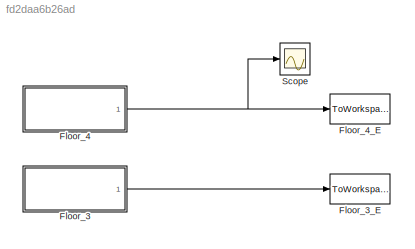
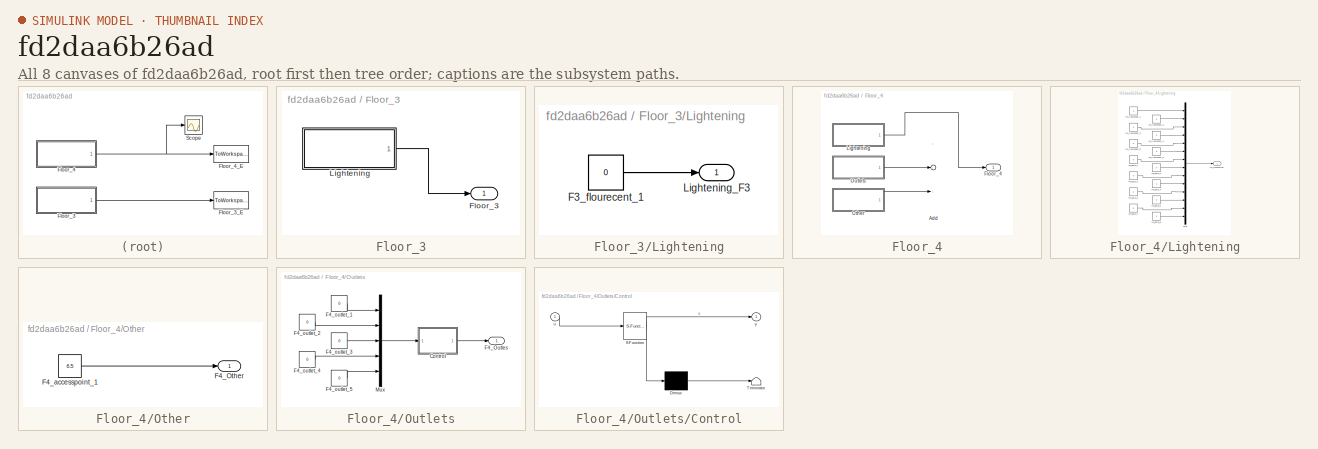
[diagram: thumbnail index - all 8 canvases of the model, root first then tree order]
MODEL slx_fd2daa6b26ad
KIND model
CONFIG AbsTol = auto
CONFIG EnableMultiTasking = off
CONFIG FixedStep = auto
CONFIG MaxStep = auto
CONFIG MinStep = auto
CONFIG RelTol = 1e-3
CONFIG SampleTimeConstraint = Unconstrained
CONFIG Solver = VariableStepAuto
CONFIG SolverName = VariableStepAuto
CONFIG StartTime = 0.0
CONFIG StopTime = inf
BLOCK [SubSystem] Floor_3
  Commented = on
  Ports = [0, 1]
  RequestExecContextInheritance = off
  Variant = off
BLOCK [Outport] Floor_3/Floor_3
  IconDisplay = Port number
BLOCK [SubSystem] Floor_3/Lightening
  Ports = [0, 1]
  RequestExecContextInheritance = off
  Variant = off
BLOCK [Constant] Floor_3/Lightening/F3_flourecent_1
  Value = 0
BLOCK [Outport] Floor_3/Lightening/Lightening_F3
  IconDisplay = Port number
BLOCK [ToWorkspace] Floor_3_E
  Commented = on
  FixptAsFi = on
  MaxDataPoints = inf
  Ports = [1]
  SampleTime = -1
  Save2DSignal = 3-D array (concatenate along third dimension)
  SaveFormat = Timeseries
  VariableName = F3_Energy
BLOCK [SubSystem] Floor_4
  Ports = [0, 1]
  RequestExecContextInheritance = off
  Variant = off
BLOCK [Sum] Floor_4/Add
  Commented = on
  InputSameDT = off
  Inputs = +++
  OutDataTypeStr = Inherit: Inherit via internal rule
  Ports = [3, 1]
  SaturateOnIntegerOverflow = off
BLOCK [Outport] Floor_4/Floor_4
  IconDisplay = Port number
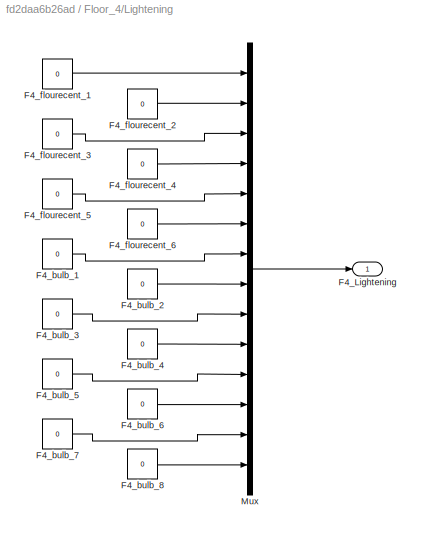
BLOCK [SubSystem] Floor_4/Lightening
  Ports = [0, 1]
  RequestExecContextInheritance = off
  Variant = off
BLOCK [Outport] Floor_4/Lightening/F4_Lightening
  IconDisplay = Port number
BLOCK [Constant] Floor_4/Lightening/F4_bulb_1
  Value = 0
BLOCK [Constant] Floor_4/Lightening/F4_bulb_2
  Value = 0
BLOCK [Constant] Floor_4/Lightening/F4_bulb_3
  Value = 0
BLOCK [Constant] Floor_4/Lightening/F4_bulb_4
  Value = 0
BLOCK [Constant] Floor_4/Lightening/F4_bulb_5
  Value = 0
BLOCK [Constant] Floor_4/Lightening/F4_bulb_6
  Value = 0
BLOCK [Constant] Floor_4/Lightening/F4_bulb_7
  Value = 0
BLOCK [Constant] Floor_4/Lightening/F4_bulb_8
  Value = 0
BLOCK [Constant] Floor_4/Lightening/F4_flourecent_1
  Value = 0
BLOCK [Constant] Floor_4/Lightening/F4_flourecent_2
  Value = 0
BLOCK [Constant] Floor_4/Lightening/F4_flourecent_3
  Value = 0
BLOCK [Constant] Floor_4/Lightening/F4_flourecent_4
  Value = 0
BLOCK [Constant] Floor_4/Lightening/F4_flourecent_5
  Value = 0
BLOCK [Constant] Floor_4/Lightening/F4_flourecent_6
  Value = 0
BLOCK [Mux] Floor_4/Lightening/Mux
  DisplayOption = bar
  Inputs = 14
  Ports = [14, 1]
BLOCK [SubSystem] Floor_4/Other
  Commented = on
  Ports = [0, 1]
  RequestExecContextInheritance = off
  Variant = off
BLOCK [Outport] Floor_4/Other/F4_Other
  IconDisplay = Port number
BLOCK [Constant] Floor_4/Other/F4_accesspoint_1
  Value = 6.5
BLOCK [SubSystem] Floor_4/Outlets
  Commented = on
  Ports = [0, 1]
  RequestExecContextInheritance = off
  Variant = off
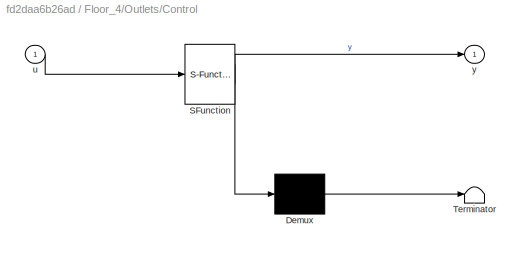
BLOCK [SubSystem] Floor_4/Outlets/Control
  ErrorFcn = Stateflow.Translate.translate
  PermitHierarchicalResolution = ExplicitOnly
  Ports = [1, 1]
  RequestExecContextInheritance = off
  SFBlockType = MATLAB Function
  TreatAsAtomicUnit = on
  Variant = off
BLOCK [Demux] Floor_4/Outlets/Control/ Demux 
  Outputs = 1
  Ports = [1, 1]
BLOCK [S-Function] Floor_4/Outlets/Control/ SFunction 
  EnableBusSupport = on
  FunctionName = sf_sfun
  PortCounts = [1 2]
  Ports = [1, 2]
  SFcnIsStateOwnerBlock = off
  SFunctionDeploymentMode = off
  Tag = Stateflow S-Function House_model 2
BLOCK [Terminator] Floor_4/Outlets/Control/ Terminator 
BLOCK [Inport] Floor_4/Outlets/Control/u
  IconDisplay = Port number
BLOCK [Outport] Floor_4/Outlets/Control/y
  IconDisplay = Port number
BLOCK [Outport] Floor_4/Outlets/F4_Outles
  IconDisplay = Port number
BLOCK [Constant] Floor_4/Outlets/F4_outlet_1
  Value = 0
BLOCK [Constant] Floor_4/Outlets/F4_outlet_2
  Value = 0
BLOCK [Constant] Floor_4/Outlets/F4_outlet_3
  Value = 0
BLOCK [Constant] Floor_4/Outlets/F4_outlet_4
  Value = 0
BLOCK [Constant] Floor_4/Outlets/F4_outlet_5
  Value = 0
BLOCK [Mux] Floor_4/Outlets/Mux
  DisplayOption = bar
  Inputs = 5
  Ports = [5, 1]
BLOCK [ToWorkspace] Floor_4_E
  FixptAsFi = on
  MaxDataPoints = inf
  Ports = [1]
  SampleTime = -1
  Save2DSignal = 3-D array (concatenate along third dimension)
  SaveFormat = Timeseries
  VariableName = F4_Energy
BLOCK [Scope] Scope
  NumInputPorts = 1
  Ports = [1]
  ScopeSpecificationString = Simulink.scopes.TimeScopeBlockCfg('CurrentConfiguration', extmgr.ConfigurationSet(extmgr.Configuration('Core','General UI',true),extmgr.Configuration('Core','Source UI',true),extmgr.Configuration('Sources','WiredSimulink',true),extmgr.Configuration('Visuals','Time Domain',true,'SerializedDisplays',{struct('MinYLimReal','217.9081','MaxYLimReal','351.24143','YLabelReal','','MinYLimMag','217.9081','M...<+1575ch>
LINE Floor_3/Lightening/F3_flourecent_1:1 -> Floor_3/Lightening/Lightening_F3:1
LINE Floor_3/Lightening:1 -> Floor_3/Floor_3:1
LINE Floor_3:1 -> Floor_3_E:1
LINE Floor_4/Lightening/F4_bulb_1:1 -> Floor_4/Lightening/Mux:7
LINE Floor_4/Lightening/F4_bulb_2:1 -> Floor_4/Lightening/Mux:8
LINE Floor_4/Lightening/F4_bulb_3:1 -> Floor_4/Lightening/Mux:9
LINE Floor_4/Lightening/F4_bulb_4:1 -> Floor_4/Lightening/Mux:10
LINE Floor_4/Lightening/F4_bulb_5:1 -> Floor_4/Lightening/Mux:11
LINE Floor_4/Lightening/F4_bulb_6:1 -> Floor_4/Lightening/Mux:12
LINE Floor_4/Lightening/F4_bulb_7:1 -> Floor_4/Lightening/Mux:13
LINE Floor_4/Lightening/F4_bulb_8:1 -> Floor_4/Lightening/Mux:14
LINE Floor_4/Lightening/F4_flourecent_1:1 -> Floor_4/Lightening/Mux:1
LINE Floor_4/Lightening/F4_flourecent_2:1 -> Floor_4/Lightening/Mux:2
LINE Floor_4/Lightening/F4_flourecent_3:1 -> Floor_4/Lightening/Mux:3
LINE Floor_4/Lightening/F4_flourecent_4:1 -> Floor_4/Lightening/Mux:4
LINE Floor_4/Lightening/F4_flourecent_5:1 -> Floor_4/Lightening/Mux:5
LINE Floor_4/Lightening/F4_flourecent_6:1 -> Floor_4/Lightening/Mux:6
LINE Floor_4/Lightening/Mux:1 -> Floor_4/Lightening/F4_Lightening:1
LINE Floor_4/Lightening:1 -> Floor_4/Floor_4:1
LINE Floor_4/Other/F4_accesspoint_1:1 -> Floor_4/Other/F4_Other:1
LINE Floor_4/Other:1 -> Floor_4/Add:3
LINE Floor_4/Outlets/Control:1 -> Floor_4/Outlets/F4_Outles:1
LINE Floor_4/Outlets/F4_outlet_1:1 -> Floor_4/Outlets/Mux:1
LINE Floor_4/Outlets/F4_outlet_2:1 -> Floor_4/Outlets/Mux:2
LINE Floor_4/Outlets/F4_outlet_3:1 -> Floor_4/Outlets/Mux:3
LINE Floor_4/Outlets/F4_outlet_4:1 -> Floor_4/Outlets/Mux:4
LINE Floor_4/Outlets/F4_outlet_5:1 -> Floor_4/Outlets/Mux:5
LINE Floor_4/Outlets/Mux:1 -> Floor_4/Outlets/Control:1
LINE Floor_4/Outlets:1 -> Floor_4/Add:2
NET Floor_4:1 -> Floor_4_E:1, Scope:1
note: NET lines group one-source signal fan-out (src -> all destinations, sorted); 1:1 wires keep LINE
CHART Floor_4/Outlets/Control states=1 transitions=1
  STATE_LABEL 'eML_blk_kernel()'
  STATE_LABEL 'SCRIPT:\nfunction y = fcn(u)\nwhile true\n    u=[1; 1; 1; 1; 1;];\nend \ny = u;\n'
